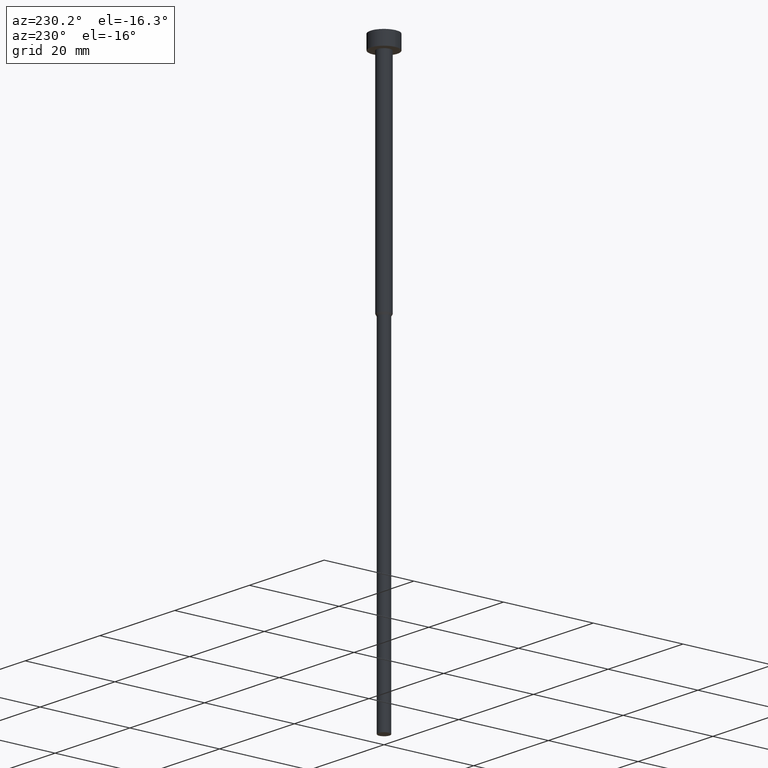
[diagram: clean part render]
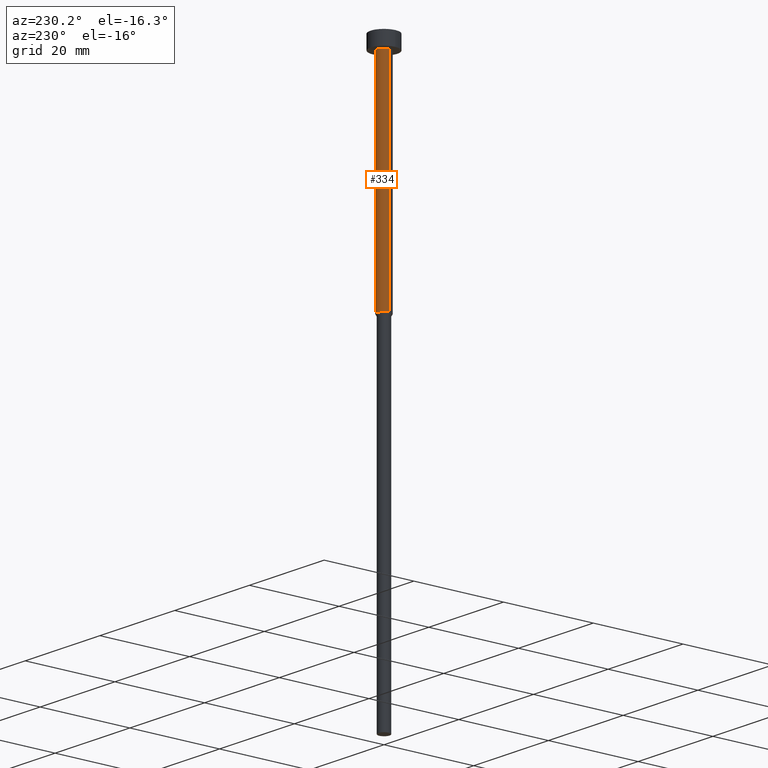
[diagram: same view with one face highlighted and labeled with its STEP entity id]
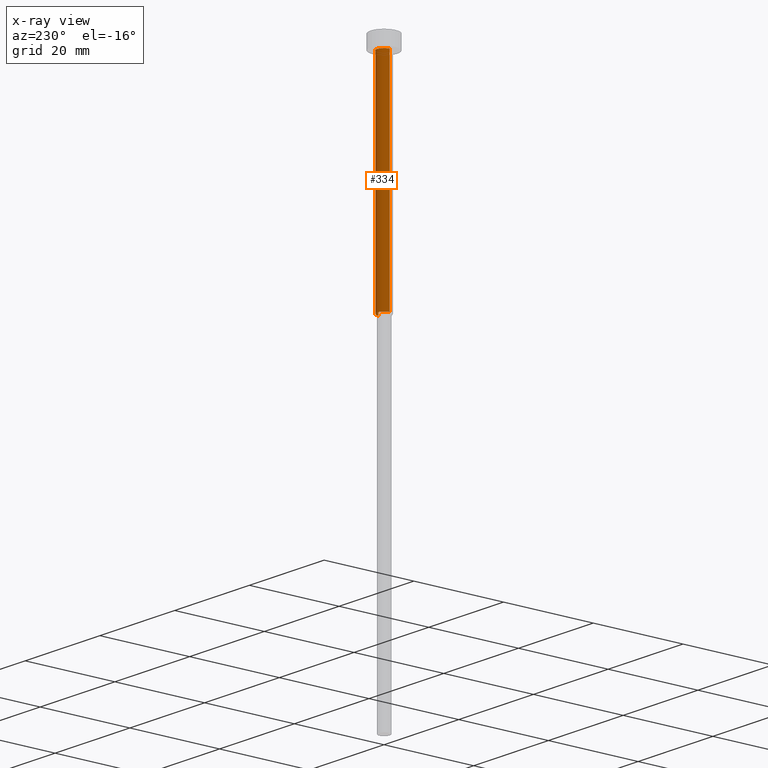
[diagram: x-ray of the same camera — body ghosted, the highlighted face saturated]
A machine part, auxiliary view. The second image highlights one B-rep face of the part: STEP entity #334.
The next image is the same camera in x-ray: the body ghosted, the highlighted face saturated — about 0% of this face is hidden behind the body in this view.
In plain terms, the highlighted cylindrical surface (edge-blend (fillet) strip) has radius 1.5 mm, axis along (-0, -0, 1).
Its self-contained STEP definition (entity closure, byte-faithful):
#1 = AXIS2_PLACEMENT_3D ( 'NONE', #91, #47, #228 ) ;
#5 = EDGE_LOOP ( 'NONE', ( #222, #329, #217, #271 ) ) ;
#10 = LINE ( 'NONE', #73, #133 ) ;
#14 = DIRECTION ( 'NONE',  ( 1.000000000000000000, 0.000000000000000000, 0.000000000000000000 ) ) ;
#17 = VECTOR ( 'NONE', #215, 1000.000000000000000 ) ;
#42 = FACE_OUTER_BOUND ( 'NONE', #5, .T. ) ;
#47 = DIRECTION ( 'NONE',  ( -0.000000000000000000, -0.000000000000000000, 1.000000000000000000 ) ) ;
#54 = CARTESIAN_POINT ( 'NONE',  ( -1.500000000000000000, 1.836970198721029934E-16, -3.000000000000000888 ) ) ;
#73 = CARTESIAN_POINT ( 'NONE',  ( -1.500000000000000000, 1.836970198721029934E-16, 0.000000000000000000 ) ) ;
#82 = VERTEX_POINT ( 'NONE', #139 ) ;
#85 = CARTESIAN_POINT ( 'NONE',  ( 0.000000000000000000, 0.000000000000000000, -3.000000000000000888 ) ) ;
#91 = CARTESIAN_POINT ( 'NONE',  ( 0.000000000000000000, 0.000000000000000000, -50.00000000000000000 ) ) ;
#118 = CARTESIAN_POINT ( 'NONE',  ( 1.500000000000000000, 0.000000000000000000, -3.000000000000000888 ) ) ;
#125 = CARTESIAN_POINT ( 'NONE',  ( 1.500000000000000000, 0.000000000000000000, 0.000000000000000000 ) ) ;
#133 = VECTOR ( 'NONE', #145, 1000.000000000000000 ) ;
#139 = CARTESIAN_POINT ( 'NONE',  ( -1.500000000000000000, 1.836970198721029934E-16, -50.00000000000000000 ) ) ;
#145 = DIRECTION ( 'NONE',  ( -0.000000000000000000, -0.000000000000000000, 1.000000000000000000 ) ) ;
#152 = EDGE_CURVE ( 'NONE', #180, #292, #242, .T. ) ;
#171 = CYLINDRICAL_SURFACE ( 'NONE', #335, 1.500000000000000000 ) ;
#180 = VERTEX_POINT ( 'NONE', #118 ) ;
#190 = CIRCLE ( 'NONE', #1, 1.500000000000000000 ) ;
#200 = DIRECTION ( 'NONE',  ( 1.000000000000000000, 0.000000000000000000, 0.000000000000000000 ) ) ;
#215 = DIRECTION ( 'NONE',  ( -0.000000000000000000, -0.000000000000000000, 1.000000000000000000 ) ) ;
#217 = ORIENTED_EDGE ( 'NONE', *, *, #152, .F. ) ;
#222 = ORIENTED_EDGE ( 'NONE', *, *, #312, .T. ) ;
#228 = DIRECTION ( 'NONE',  ( 1.000000000000000000, 0.000000000000000000, 0.000000000000000000 ) ) ;
#242 = CIRCLE ( 'NONE', #311, 1.500000000000000000 ) ;
#258 = DIRECTION ( 'NONE',  ( -0.000000000000000000, -0.000000000000000000, 1.000000000000000000 ) ) ;
#260 = DIRECTION ( 'NONE',  ( -0.000000000000000000, -0.000000000000000000, 1.000000000000000000 ) ) ;
#271 = ORIENTED_EDGE ( 'NONE', *, *, #303, .F. ) ;
#292 = VERTEX_POINT ( 'NONE', #54 ) ;
#303 = EDGE_CURVE ( 'NONE', #353, #180, #320, .T. ) ;
#307 = CARTESIAN_POINT ( 'NONE',  ( 1.500000000000000000, 0.000000000000000000, -50.00000000000000000 ) ) ;
#311 = AXIS2_PLACEMENT_3D ( 'NONE', #85, #260, #200 ) ;
#312 = EDGE_CURVE ( 'NONE', #353, #82, #190, .T. ) ;
#320 = LINE ( 'NONE', #125, #17 ) ;
#324 = EDGE_CURVE ( 'NONE', #82, #292, #10, .T. ) ;
#329 = ORIENTED_EDGE ( 'NONE', *, *, #324, .T. ) ;
#334 = ADVANCED_FACE ( 'NONE', ( #42 ), #171, .T. ) ;
#335 = AXIS2_PLACEMENT_3D ( 'NONE', #336, #258, #14 ) ;
#336 = CARTESIAN_POINT ( 'NONE',  ( 0.000000000000000000, 0.000000000000000000, 0.000000000000000000 ) ) ;
#353 = VERTEX_POINT ( 'NONE', #307 ) ;